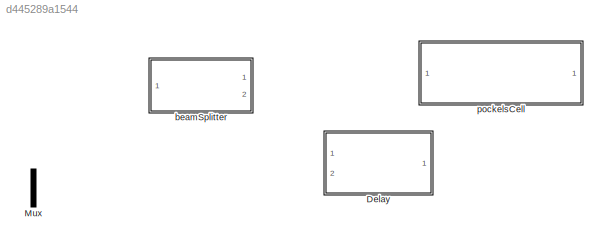
MODEL slx_d445289a1544
KIND library
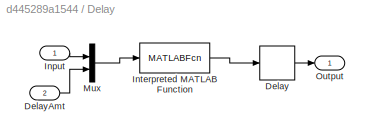
BLOCK [SubSystem] Delay
  Ports = [2, 1]
  RequestExecContextInheritance = off
BLOCK [Delay] Delay/Delay
  DelayLength = 1
  InitialCondition = 0
  InputPortMap = u0
  Ports = [1, 1]
BLOCK [Inport] Delay/DelayAmt
  IconDisplay = Port number
  Port = 2
BLOCK [Inport] Delay/Input
  IconDisplay = Port number
BLOCK [MATLABFcn] Delay/Interpreted MATLAB Function
  MATLABFcn = delay(u)
  Ports = [1, 1]
BLOCK [Mux] Delay/Mux
  DisplayOption = bar
  Inputs = 2
  Ports = [2, 1]
BLOCK [Outport] Delay/Output
  IconDisplay = Port number
BLOCK [Mux] Mux
  DisplayOption = bar
  Inputs = 2
  Ports = [2, 1]
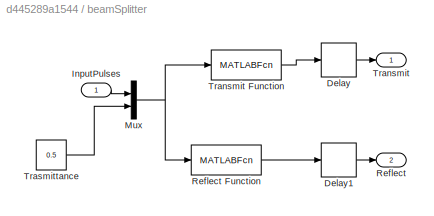
BLOCK [SubSystem] beamSplitter 
  Ports = [1, 2]
  RequestExecContextInheritance = off
BLOCK [Delay] beamSplitter /Delay
  DelayLength = 1
  InitialCondition = 0
  InputPortMap = u0
  Ports = [1, 1]
BLOCK [Delay] beamSplitter /Delay1
  DelayLength = 1
  InitialCondition = 0
  InputPortMap = u0
  Ports = [1, 1]
BLOCK [Inport] beamSplitter /InputPulses
  IconDisplay = Port number
BLOCK [Mux] beamSplitter /Mux
  DisplayOption = bar
  Inputs = 2
  Ports = [2, 1]
BLOCK [Outport] beamSplitter /Reflect
  IconDisplay = Port number
  Port = 2
BLOCK [MATLABFcn] beamSplitter /Reflect Function
  MATLABFcn = beamSplitterReflect(u)
  Ports = [1, 1]
BLOCK [Outport] beamSplitter /Transmit
  IconDisplay = Port number
BLOCK [MATLABFcn] beamSplitter /Transmit Function
  MATLABFcn = beamSplitterTransmit(u)
  Ports = [1, 1]
BLOCK [Constant] beamSplitter /Trasmittance
  Value = 0.5
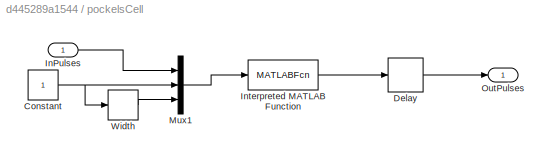
BLOCK [SubSystem] pockelsCell
  Ports = [1, 1]
  RequestExecContextInheritance = off
BLOCK [Constant] pockelsCell/Constant
BLOCK [Delay] pockelsCell/Delay
  DelayLength = 1
  InitialCondition = 0
  InputPortMap = u0
  Ports = [1, 1]
BLOCK [Inport] pockelsCell/InPulses
  IconDisplay = Port number
BLOCK [MATLABFcn] pockelsCell/Interpreted MATLAB Function
  MATLABFcn = pockelsCell(u)
  Ports = [1, 1]
BLOCK [Mux] pockelsCell/Mux1
  DisplayOption = bar
  Inputs = 3
  Ports = [3, 1]
BLOCK [Outport] pockelsCell/OutPulses
  IconDisplay = Port number
BLOCK [Width] pockelsCell/Width
LINE Delay/Delay:1 -> Delay/Output:1
LINE Delay/DelayAmt:1 -> Delay/Mux:2
LINE Delay/Input:1 -> Delay/Mux:1
LINE Delay/Interpreted MATLAB Function:1 -> Delay/Delay:1
LINE Delay/Mux:1 -> Delay/Interpreted MATLAB Function:1
LINE beamSplitter /Delay1:1 -> beamSplitter /Reflect:1
LINE beamSplitter /Delay:1 -> beamSplitter /Transmit:1
LINE beamSplitter /InputPulses:1 -> beamSplitter /Mux:1
NET beamSplitter /Mux:1 -> beamSplitter /Reflect Function:1, beamSplitter /Transmit Function:1
LINE beamSplitter /Reflect Function:1 -> beamSplitter /Delay1:1
LINE beamSplitter /Transmit Function:1 -> beamSplitter /Delay:1
LINE beamSplitter /Trasmittance:1 -> beamSplitter /Mux:2
NET pockelsCell/Constant:1 -> pockelsCell/Mux1:2, pockelsCell/Width:1
LINE pockelsCell/Delay:1 -> pockelsCell/OutPulses:1
LINE pockelsCell/InPulses:1 -> pockelsCell/Mux1:1
LINE pockelsCell/Interpreted MATLAB Function:1 -> pockelsCell/Delay:1
LINE pockelsCell/Mux1:1 -> pockelsCell/Interpreted MATLAB Function:1
LINE pockelsCell/Width:1 -> pockelsCell/Mux1:3
note: NET lines group one-source signal fan-out (src -> all destinations, sorted); 1:1 wires keep LINE
